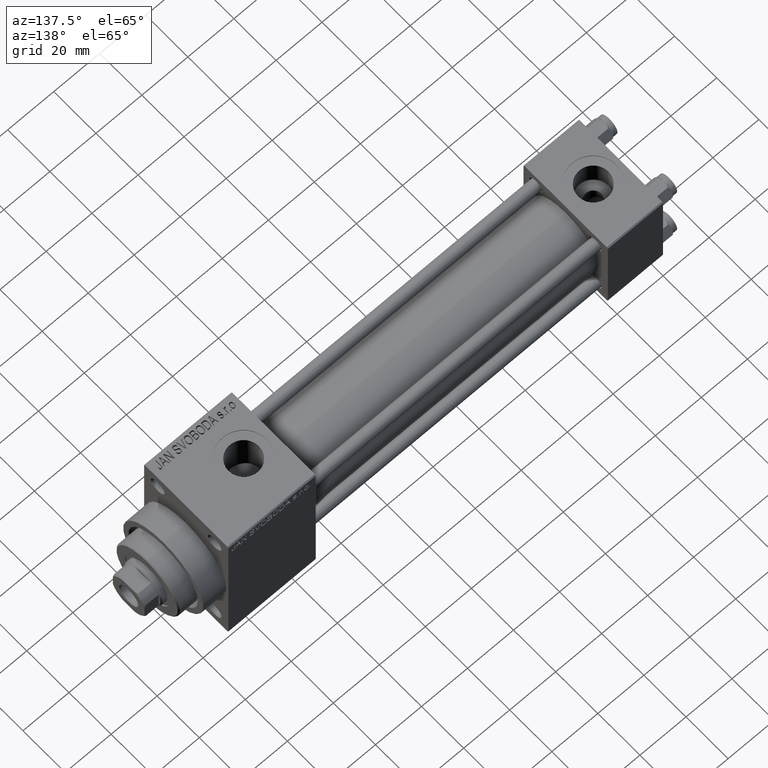
[diagram: clean part render]
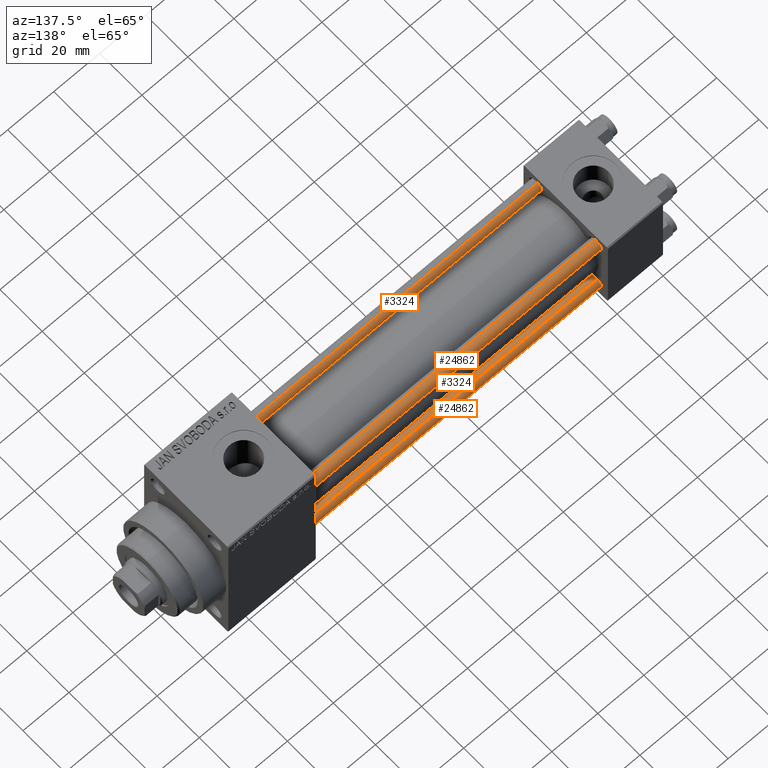
[diagram: same view with one multi-face feature highlighted, each face labeled with its STEP entity id]
A machine part, auxiliary view. The highlighted faces form ONE feature: a constant-radius fillet chain: 4 tangent blend faces with common blend radius 2.5 mm. The faces share edges in the B-rep.
Their STEP definitions:
[1] entity #24862 (Cylinder):
#86 = VECTOR ( 'NONE', #21024, 1000.000000000000000 ) ;
#681 = EDGE_CURVE ( 'NONE', #22825, #32482, #21262, .T. ) ;
#1503 = CARTESIAN_POINT ( 'NONE',  ( 0.000000000000000000, 0.000000000000000000, 173.5000000000000000 ) ) ;
#5077 = CARTESIAN_POINT ( 'NONE',  ( 2.500000000000000000, 3.061616997868383141E-16, 174.0000000000000000 ) ) ;
#5420 = EDGE_CURVE ( 'NONE', #43956, #44422, #13165, .T. ) ;
#5471 = EDGE_CURVE ( 'NONE', #22825, #43956, #16511, .T. ) ;
#7055 = DIRECTION ( 'NONE',  ( -0.000000000000000000, -0.000000000000000000, 1.000000000000000000 ) ) ;
#9467 = DIRECTION ( 'NONE',  ( -1.000000000000000000, 0.000000000000000000, 0.000000000000000000 ) ) ;
#13033 = CYLINDRICAL_SURFACE ( 'NONE', #29966, 2.500000000000000000 ) ;
#13165 = LINE ( 'NONE', #5077, #30219 ) ;
#15159 = CARTESIAN_POINT ( 'NONE',  ( 2.500000000000000000, 3.061616997868383141E-16, 0.5000000000000281997 ) ) ;
#16511 = CIRCLE ( 'NONE', #40123, 2.500000000000000000 ) ;
#19755 = AXIS2_PLACEMENT_3D ( 'NONE', #42783, #7055, #24683 ) ;
#21024 = DIRECTION ( 'NONE',  ( -0.000000000000000000, -0.000000000000000000, -1.000000000000000000 ) ) ;
#21199 = CARTESIAN_POINT ( 'NONE',  ( -2.500000000000000000, 0.000000000000000000, 0.5000000000000281997 ) ) ;
#21262 = LINE ( 'NONE', #32460, #86 ) ;
#22825 = VERTEX_POINT ( 'NONE', #46568 ) ;
#24113 = DIRECTION ( 'NONE',  ( 0.000000000000000000, 0.000000000000000000, -1.000000000000000000 ) ) ;
#24683 = DIRECTION ( 'NONE',  ( 1.000000000000000000, 0.000000000000000000, 0.000000000000000000 ) ) ;
#24862 = ADVANCED_FACE ( 'NONE', ( #39397 ), #13033, .T. ) ;
#27223 = DIRECTION ( 'NONE',  ( -0.000000000000000000, -0.000000000000000000, -1.000000000000000000 ) ) ;
#27577 = CARTESIAN_POINT ( 'NONE',  ( 0.000000000000000000, 0.000000000000000000, 174.0000000000000000 ) ) ;
#29966 = AXIS2_PLACEMENT_3D ( 'NONE', #27577, #42093, #9467 ) ;
#30219 = VECTOR ( 'NONE', #27223, 1000.000000000000000 ) ;
#30801 = DIRECTION ( 'NONE',  ( 1.000000000000000000, 0.000000000000000000, 0.000000000000000000 ) ) ;
#31247 = ORIENTED_EDGE ( 'NONE', *, *, #681, .F. ) ;
#32460 = CARTESIAN_POINT ( 'NONE',  ( -2.500000000000000000, 0.000000000000000000, 174.0000000000000000 ) ) ;
#32482 = VERTEX_POINT ( 'NONE', #21199 ) ;
#33314 = CARTESIAN_POINT ( 'NONE',  ( 2.500000000000000000, 3.061616997868383141E-16, 173.5000000000000000 ) ) ;
#38780 = CIRCLE ( 'NONE', #19755, 2.500000000000000000 ) ;
#39049 = ORIENTED_EDGE ( 'NONE', *, *, #5420, .T. ) ;
#39397 = FACE_OUTER_BOUND ( 'NONE', #46571, .T. ) ;
#40123 = AXIS2_PLACEMENT_3D ( 'NONE', #1503, #24113, #30801 ) ;
#41927 = EDGE_CURVE ( 'NONE', #44422, #32482, #38780, .T. ) ;
#42093 = DIRECTION ( 'NONE',  ( -0.000000000000000000, -0.000000000000000000, -1.000000000000000000 ) ) ;
#42196 = ORIENTED_EDGE ( 'NONE', *, *, #5471, .T. ) ;
#42783 = CARTESIAN_POINT ( 'NONE',  ( 0.000000000000000000, 0.000000000000000000, 0.5000000000000281997 ) ) ;
#43956 = VERTEX_POINT ( 'NONE', #33314 ) ;
#44422 = VERTEX_POINT ( 'NONE', #15159 ) ;
#45366 = ORIENTED_EDGE ( 'NONE', *, *, #41927, .T. ) ;
#46568 = CARTESIAN_POINT ( 'NONE',  ( -2.500000000000000000, 0.000000000000000000, 173.5000000000000000 ) ) ;
#46571 = EDGE_LOOP ( 'NONE', ( #42196, #39049, #45366, #31247 ) ) ;
[2] entity #3324 (Cylinder):
#86 = VECTOR ( 'NONE', #21024, 1000.000000000000000 ) ;
#674 = DIRECTION ( 'NONE',  ( -0.000000000000000000, -0.000000000000000000, 1.000000000000000000 ) ) ;
#681 = EDGE_CURVE ( 'NONE', #22825, #32482, #21262, .T. ) ;
#3324 = ADVANCED_FACE ( 'NONE', ( #8576 ), #4294, .T. ) ;
#4294 = CYLINDRICAL_SURFACE ( 'NONE', #22537, 2.500000000000000000 ) ;
#5077 = CARTESIAN_POINT ( 'NONE',  ( 2.500000000000000000, 3.061616997868383141E-16, 174.0000000000000000 ) ) ;
#5196 = CARTESIAN_POINT ( 'NONE',  ( 0.000000000000000000, 0.000000000000000000, 0.5000000000000281997 ) ) ;
#5345 = AXIS2_PLACEMENT_3D ( 'NONE', #34301, #38110, #9286 ) ;
#5420 = EDGE_CURVE ( 'NONE', #43956, #44422, #13165, .T. ) ;
#8576 = FACE_OUTER_BOUND ( 'NONE', #41268, .T. ) ;
#9286 = DIRECTION ( 'NONE',  ( 1.000000000000000000, 0.000000000000000000, 0.000000000000000000 ) ) ;
#9418 = ORIENTED_EDGE ( 'NONE', *, *, #45514, .T. ) ;
#12182 = CIRCLE ( 'NONE', #5345, 2.500000000000000000 ) ;
#13165 = LINE ( 'NONE', #5077, #30219 ) ;
#15159 = CARTESIAN_POINT ( 'NONE',  ( 2.500000000000000000, 3.061616997868383141E-16, 0.5000000000000281997 ) ) ;
#15209 = AXIS2_PLACEMENT_3D ( 'NONE', #5196, #674, #29978 ) ;
#21024 = DIRECTION ( 'NONE',  ( -0.000000000000000000, -0.000000000000000000, -1.000000000000000000 ) ) ;
#21199 = CARTESIAN_POINT ( 'NONE',  ( -2.500000000000000000, 0.000000000000000000, 0.5000000000000281997 ) ) ;
#21262 = LINE ( 'NONE', #32460, #86 ) ;
#22537 = AXIS2_PLACEMENT_3D ( 'NONE', #45002, #41439, #23098 ) ;
#22825 = VERTEX_POINT ( 'NONE', #46568 ) ;
#23098 = DIRECTION ( 'NONE',  ( -1.000000000000000000, 0.000000000000000000, 0.000000000000000000 ) ) ;
#27223 = DIRECTION ( 'NONE',  ( -0.000000000000000000, -0.000000000000000000, -1.000000000000000000 ) ) ;
#29978 = DIRECTION ( 'NONE',  ( 1.000000000000000000, 0.000000000000000000, 0.000000000000000000 ) ) ;
#30219 = VECTOR ( 'NONE', #27223, 1000.000000000000000 ) ;
#32460 = CARTESIAN_POINT ( 'NONE',  ( -2.500000000000000000, 0.000000000000000000, 174.0000000000000000 ) ) ;
#32482 = VERTEX_POINT ( 'NONE', #21199 ) ;
#33314 = CARTESIAN_POINT ( 'NONE',  ( 2.500000000000000000, 3.061616997868383141E-16, 173.5000000000000000 ) ) ;
#34301 = CARTESIAN_POINT ( 'NONE',  ( 0.000000000000000000, 0.000000000000000000, 173.5000000000000000 ) ) ;
#37680 = ORIENTED_EDGE ( 'NONE', *, *, #41077, .T. ) ;
#38030 = CIRCLE ( 'NONE', #15209, 2.500000000000000000 ) ;
#38110 = DIRECTION ( 'NONE',  ( 0.000000000000000000, 0.000000000000000000, -1.000000000000000000 ) ) ;
#41077 = EDGE_CURVE ( 'NONE', #32482, #44422, #38030, .T. ) ;
#41268 = EDGE_LOOP ( 'NONE', ( #42316, #9418, #45869, #37680 ) ) ;
#41439 = DIRECTION ( 'NONE',  ( -0.000000000000000000, -0.000000000000000000, -1.000000000000000000 ) ) ;
#42316 = ORIENTED_EDGE ( 'NONE', *, *, #5420, .F. ) ;
#43956 = VERTEX_POINT ( 'NONE', #33314 ) ;
#44422 = VERTEX_POINT ( 'NONE', #15159 ) ;
#45002 = CARTESIAN_POINT ( 'NONE',  ( 0.000000000000000000, 0.000000000000000000, 174.0000000000000000 ) ) ;
#45514 = EDGE_CURVE ( 'NONE', #43956, #22825, #12182, .T. ) ;
#45869 = ORIENTED_EDGE ( 'NONE', *, *, #681, .T. ) ;
#46568 = CARTESIAN_POINT ( 'NONE',  ( -2.500000000000000000, 0.000000000000000000, 173.5000000000000000 ) ) ;
[3] entity #3324 (Cylinder):
#86 = VECTOR ( 'NONE', #21024, 1000.000000000000000 ) ;
#674 = DIRECTION ( 'NONE',  ( -0.000000000000000000, -0.000000000000000000, 1.000000000000000000 ) ) ;
#681 = EDGE_CURVE ( 'NONE', #22825, #32482, #21262, .T. ) ;
#3324 = ADVANCED_FACE ( 'NONE', ( #8576 ), #4294, .T. ) ;
#4294 = CYLINDRICAL_SURFACE ( 'NONE', #22537, 2.500000000000000000 ) ;
#5077 = CARTESIAN_POINT ( 'NONE',  ( 2.500000000000000000, 3.061616997868383141E-16, 174.0000000000000000 ) ) ;
#5196 = CARTESIAN_POINT ( 'NONE',  ( 0.000000000000000000, 0.000000000000000000, 0.5000000000000281997 ) ) ;
#5345 = AXIS2_PLACEMENT_3D ( 'NONE', #34301, #38110, #9286 ) ;
#5420 = EDGE_CURVE ( 'NONE', #43956, #44422, #13165, .T. ) ;
#8576 = FACE_OUTER_BOUND ( 'NONE', #41268, .T. ) ;
#9286 = DIRECTION ( 'NONE',  ( 1.000000000000000000, 0.000000000000000000, 0.000000000000000000 ) ) ;
#9418 = ORIENTED_EDGE ( 'NONE', *, *, #45514, .T. ) ;
#12182 = CIRCLE ( 'NONE', #5345, 2.500000000000000000 ) ;
#13165 = LINE ( 'NONE', #5077, #30219 ) ;
#15159 = CARTESIAN_POINT ( 'NONE',  ( 2.500000000000000000, 3.061616997868383141E-16, 0.5000000000000281997 ) ) ;
#15209 = AXIS2_PLACEMENT_3D ( 'NONE', #5196, #674, #29978 ) ;
#21024 = DIRECTION ( 'NONE',  ( -0.000000000000000000, -0.000000000000000000, -1.000000000000000000 ) ) ;
#21199 = CARTESIAN_POINT ( 'NONE',  ( -2.500000000000000000, 0.000000000000000000, 0.5000000000000281997 ) ) ;
#21262 = LINE ( 'NONE', #32460, #86 ) ;
#22537 = AXIS2_PLACEMENT_3D ( 'NONE', #45002, #41439, #23098 ) ;
#22825 = VERTEX_POINT ( 'NONE', #46568 ) ;
#23098 = DIRECTION ( 'NONE',  ( -1.000000000000000000, 0.000000000000000000, 0.000000000000000000 ) ) ;
#27223 = DIRECTION ( 'NONE',  ( -0.000000000000000000, -0.000000000000000000, -1.000000000000000000 ) ) ;
#29978 = DIRECTION ( 'NONE',  ( 1.000000000000000000, 0.000000000000000000, 0.000000000000000000 ) ) ;
#30219 = VECTOR ( 'NONE', #27223, 1000.000000000000000 ) ;
#32460 = CARTESIAN_POINT ( 'NONE',  ( -2.500000000000000000, 0.000000000000000000, 174.0000000000000000 ) ) ;
#32482 = VERTEX_POINT ( 'NONE', #21199 ) ;
#33314 = CARTESIAN_POINT ( 'NONE',  ( 2.500000000000000000, 3.061616997868383141E-16, 173.5000000000000000 ) ) ;
#34301 = CARTESIAN_POINT ( 'NONE',  ( 0.000000000000000000, 0.000000000000000000, 173.5000000000000000 ) ) ;
#37680 = ORIENTED_EDGE ( 'NONE', *, *, #41077, .T. ) ;
#38030 = CIRCLE ( 'NONE', #15209, 2.500000000000000000 ) ;
#38110 = DIRECTION ( 'NONE',  ( 0.000000000000000000, 0.000000000000000000, -1.000000000000000000 ) ) ;
#41077 = EDGE_CURVE ( 'NONE', #32482, #44422, #38030, .T. ) ;
#41268 = EDGE_LOOP ( 'NONE', ( #42316, #9418, #45869, #37680 ) ) ;
#41439 = DIRECTION ( 'NONE',  ( -0.000000000000000000, -0.000000000000000000, -1.000000000000000000 ) ) ;
#42316 = ORIENTED_EDGE ( 'NONE', *, *, #5420, .F. ) ;
#43956 = VERTEX_POINT ( 'NONE', #33314 ) ;
#44422 = VERTEX_POINT ( 'NONE', #15159 ) ;
#45002 = CARTESIAN_POINT ( 'NONE',  ( 0.000000000000000000, 0.000000000000000000, 174.0000000000000000 ) ) ;
#45514 = EDGE_CURVE ( 'NONE', #43956, #22825, #12182, .T. ) ;
#45869 = ORIENTED_EDGE ( 'NONE', *, *, #681, .T. ) ;
#46568 = CARTESIAN_POINT ( 'NONE',  ( -2.500000000000000000, 0.000000000000000000, 173.5000000000000000 ) ) ;
[4] entity #24862 (Cylinder):
#86 = VECTOR ( 'NONE', #21024, 1000.000000000000000 ) ;
#681 = EDGE_CURVE ( 'NONE', #22825, #32482, #21262, .T. ) ;
#1503 = CARTESIAN_POINT ( 'NONE',  ( 0.000000000000000000, 0.000000000000000000, 173.5000000000000000 ) ) ;
#5077 = CARTESIAN_POINT ( 'NONE',  ( 2.500000000000000000, 3.061616997868383141E-16, 174.0000000000000000 ) ) ;
#5420 = EDGE_CURVE ( 'NONE', #43956, #44422, #13165, .T. ) ;
#5471 = EDGE_CURVE ( 'NONE', #22825, #43956, #16511, .T. ) ;
#7055 = DIRECTION ( 'NONE',  ( -0.000000000000000000, -0.000000000000000000, 1.000000000000000000 ) ) ;
#9467 = DIRECTION ( 'NONE',  ( -1.000000000000000000, 0.000000000000000000, 0.000000000000000000 ) ) ;
#13033 = CYLINDRICAL_SURFACE ( 'NONE', #29966, 2.500000000000000000 ) ;
#13165 = LINE ( 'NONE', #5077, #30219 ) ;
#15159 = CARTESIAN_POINT ( 'NONE',  ( 2.500000000000000000, 3.061616997868383141E-16, 0.5000000000000281997 ) ) ;
#16511 = CIRCLE ( 'NONE', #40123, 2.500000000000000000 ) ;
#19755 = AXIS2_PLACEMENT_3D ( 'NONE', #42783, #7055, #24683 ) ;
#21024 = DIRECTION ( 'NONE',  ( -0.000000000000000000, -0.000000000000000000, -1.000000000000000000 ) ) ;
#21199 = CARTESIAN_POINT ( 'NONE',  ( -2.500000000000000000, 0.000000000000000000, 0.5000000000000281997 ) ) ;
#21262 = LINE ( 'NONE', #32460, #86 ) ;
#22825 = VERTEX_POINT ( 'NONE', #46568 ) ;
#24113 = DIRECTION ( 'NONE',  ( 0.000000000000000000, 0.000000000000000000, -1.000000000000000000 ) ) ;
#24683 = DIRECTION ( 'NONE',  ( 1.000000000000000000, 0.000000000000000000, 0.000000000000000000 ) ) ;
#24862 = ADVANCED_FACE ( 'NONE', ( #39397 ), #13033, .T. ) ;
#27223 = DIRECTION ( 'NONE',  ( -0.000000000000000000, -0.000000000000000000, -1.000000000000000000 ) ) ;
#27577 = CARTESIAN_POINT ( 'NONE',  ( 0.000000000000000000, 0.000000000000000000, 174.0000000000000000 ) ) ;
#29966 = AXIS2_PLACEMENT_3D ( 'NONE', #27577, #42093, #9467 ) ;
#30219 = VECTOR ( 'NONE', #27223, 1000.000000000000000 ) ;
#30801 = DIRECTION ( 'NONE',  ( 1.000000000000000000, 0.000000000000000000, 0.000000000000000000 ) ) ;
#31247 = ORIENTED_EDGE ( 'NONE', *, *, #681, .F. ) ;
#32460 = CARTESIAN_POINT ( 'NONE',  ( -2.500000000000000000, 0.000000000000000000, 174.0000000000000000 ) ) ;
#32482 = VERTEX_POINT ( 'NONE', #21199 ) ;
#33314 = CARTESIAN_POINT ( 'NONE',  ( 2.500000000000000000, 3.061616997868383141E-16, 173.5000000000000000 ) ) ;
#38780 = CIRCLE ( 'NONE', #19755, 2.500000000000000000 ) ;
#39049 = ORIENTED_EDGE ( 'NONE', *, *, #5420, .T. ) ;
#39397 = FACE_OUTER_BOUND ( 'NONE', #46571, .T. ) ;
#40123 = AXIS2_PLACEMENT_3D ( 'NONE', #1503, #24113, #30801 ) ;
#41927 = EDGE_CURVE ( 'NONE', #44422, #32482, #38780, .T. ) ;
#42093 = DIRECTION ( 'NONE',  ( -0.000000000000000000, -0.000000000000000000, -1.000000000000000000 ) ) ;
#42196 = ORIENTED_EDGE ( 'NONE', *, *, #5471, .T. ) ;
#42783 = CARTESIAN_POINT ( 'NONE',  ( 0.000000000000000000, 0.000000000000000000, 0.5000000000000281997 ) ) ;
#43956 = VERTEX_POINT ( 'NONE', #33314 ) ;
#44422 = VERTEX_POINT ( 'NONE', #15159 ) ;
#45366 = ORIENTED_EDGE ( 'NONE', *, *, #41927, .T. ) ;
#46568 = CARTESIAN_POINT ( 'NONE',  ( -2.500000000000000000, 0.000000000000000000, 173.5000000000000000 ) ) ;
#46571 = EDGE_LOOP ( 'NONE', ( #42196, #39049, #45366, #31247 ) ) ;